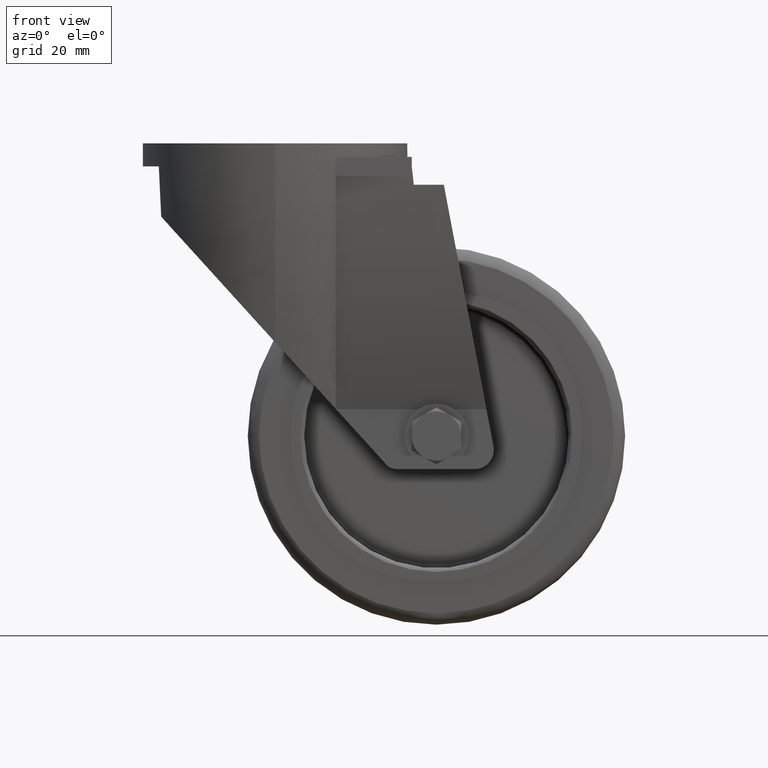
[diagram: clean part render]
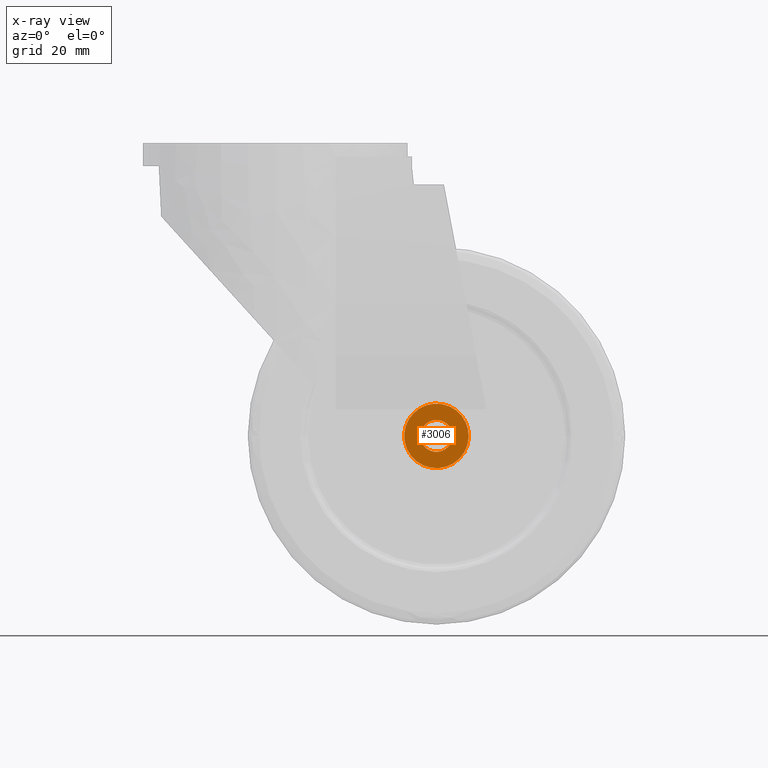
[diagram: x-ray — body ghosted, one internal face saturated and labeled with its STEP entity id]
A machine part, front view, then the same camera in x-ray: the body is ghosted and one INTERNAL B-rep face — a face not visible from any outside direction — is saturated and labeled: STEP entity #3006.
In plain terms, the highlighted planar face has unit normal (0, 1, 0).
Its self-contained STEP definition (entity closure, byte-faithful):
#2900=CARTESIAN_POINT('',(34.365710776114184,-19.570057319301668,-77.608596313047428));
#2901=VERTEX_POINT('',#2900);
#2908=CARTESIAN_POINT('',(50.634268443546475,-19.570057319301668,-82.541549933489250));
#2909=VERTEX_POINT('',#2908);
#2910=CARTESIAN_POINT('',(42.499989609830322,-19.570057319301672,-80.075073123268339));
#2911=DIRECTION('',(-6.166461E-016,1.000000000000000,-1.228067E-016));
#2912=DIRECTION('',(-0.956973980437194,-5.544790E-016,0.290173742378930));
#2913=AXIS2_PLACEMENT_3D('',#2910,#2911,#2912);
#2914=CIRCLE('',#2913,8.500000000000000);
#2915=EDGE_CURVE('',#2909,#2901,#2914,.T.);
#2917=CARTESIAN_POINT('',(42.499989609830322,-19.570057319301672,-80.075073123268339));
#2918=DIRECTION('',(-6.166461E-016,1.000000000000000,-1.228067E-016));
#2919=DIRECTION('',(-0.956973980437194,-5.544790E-016,0.290173742378930));
#2920=AXIS2_PLACEMENT_3D('',#2917,#2918,#2919);
#2921=CIRCLE('',#2920,8.500000000000000);
#2922=EDGE_CURVE('',#2901,#2909,#2921,.T.);
#2951=CARTESIAN_POINT('',(38.480699074522420,-19.570057319301725,-78.856343460623066));
#2952=VERTEX_POINT('',#2951);
#2959=CARTESIAN_POINT('',(46.519280145138239,-19.570057319301672,-81.293802785913613));
#2960=VERTEX_POINT('',#2959);
#2961=CARTESIAN_POINT('',(42.499989609830322,-19.570057319301672,-80.075073123268339));
#2962=DIRECTION('',(6.166461E-016,-1.000000000000000,1.228067E-016));
#2963=DIRECTION('',(-0.956973980437194,-5.544790E-016,0.290173742378930));
#2964=AXIS2_PLACEMENT_3D('',#2961,#2962,#2963);
#2965=CIRCLE('',#2964,4.199999809265137);
#2966=EDGE_CURVE('',#2960,#2952,#2965,.T.);
#2968=CARTESIAN_POINT('',(42.499989609830322,-19.570057319301672,-80.075073123268339));
#2969=DIRECTION('',(6.166461E-016,-1.000000000000000,1.228067E-016));
#2970=DIRECTION('',(-0.956973980437194,-5.544790E-016,0.290173742378930));
#2971=AXIS2_PLACEMENT_3D('',#2968,#2969,#2970);
#2972=CIRCLE('',#2971,4.199999809265137);
#2973=EDGE_CURVE('',#2952,#2960,#2972,.T.);
#2993=CARTESIAN_POINT('',(50.982305572762385,-19.570057319301668,-95.939946039605275));
#2994=DIRECTION('',(0.0,1.0,0.0));
#2995=DIRECTION('',(-0.956973980437194,0.0,0.290173742378930));
#2996=AXIS2_PLACEMENT_3D('',#2993,#2994,#2995);
#2997=PLANE('',#2996);
#2998=ORIENTED_EDGE('',*,*,#2922,.T.);
#2999=ORIENTED_EDGE('',*,*,#2915,.T.);
#3000=EDGE_LOOP('',(#2998,#2999));
#3001=FACE_OUTER_BOUND('',#3000,.T.);
#3002=ORIENTED_EDGE('',*,*,#2973,.T.);
#3003=ORIENTED_EDGE('',*,*,#2966,.T.);
#3004=EDGE_LOOP('',(#3002,#3003));
#3005=FACE_BOUND('',#3004,.T.);
#3006=ADVANCED_FACE('',(#3001,#3005),#2997,.T.);